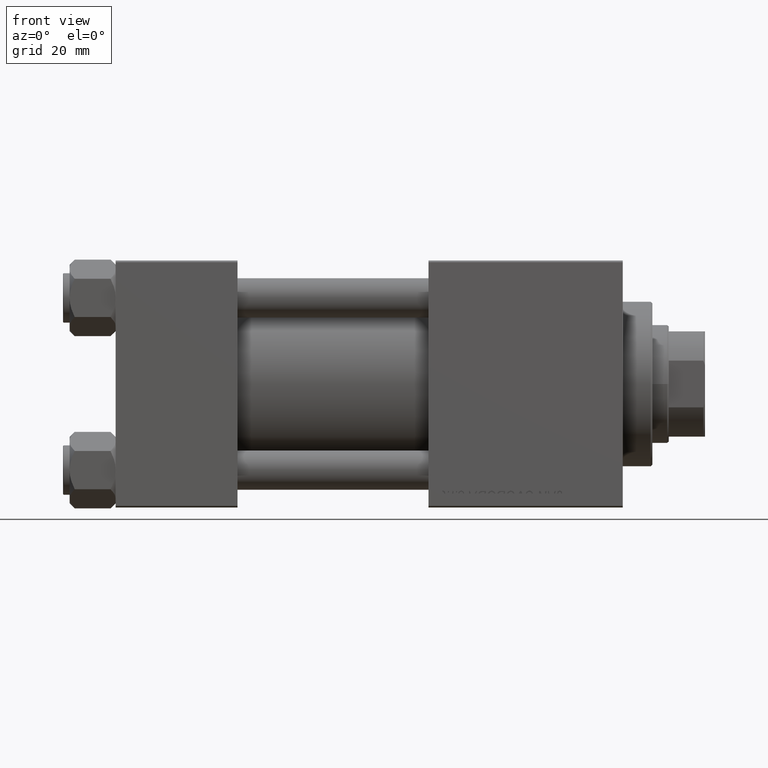
[diagram: clean part render]
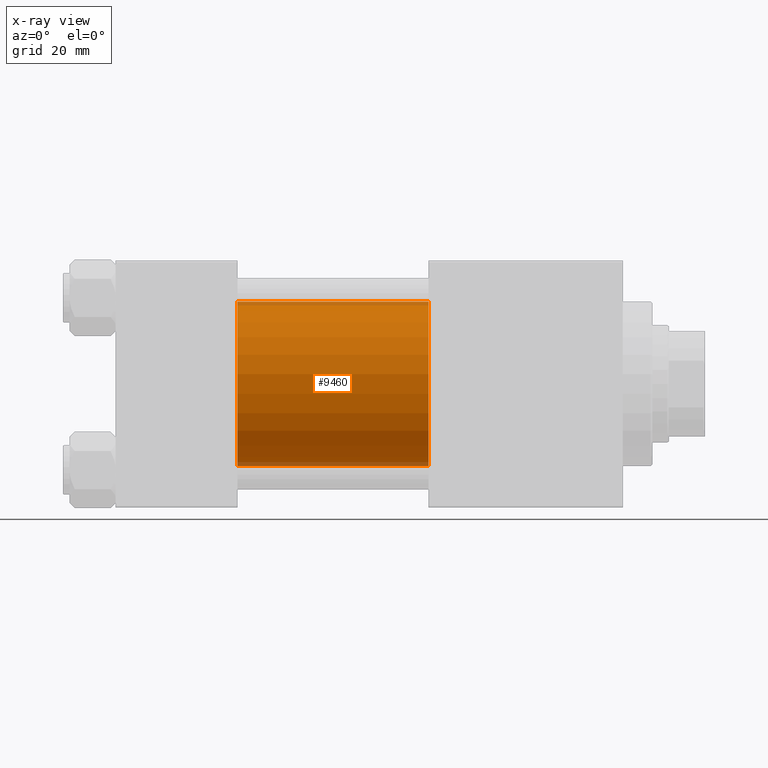
[diagram: x-ray — body ghosted, one internal face saturated and labeled with its STEP entity id]
A machine part, front view, then the same camera in x-ray: the body is ghosted and one INTERNAL B-rep face — a face not visible from any outside direction — is saturated and labeled: STEP entity #9460.
In plain terms, the highlighted cylindrical surface (partial cylindrical patch) has radius 25 mm, axis along (-1, -0, -0).
Its self-contained STEP definition (entity closure, byte-faithful):
#368 = CARTESIAN_POINT ( 'NONE',  ( 95.00000000000000000, -2.602085213965210642E-15, 0.000000000000000000 ) ) ;
#1011 = CARTESIAN_POINT ( 'NONE',  ( 95.00000000000000000, 4.595317839031718093E-16, -25.00000000000000000 ) ) ;
#2194 = CARTESIAN_POINT ( 'NONE',  ( 37.00000000000000000, -2.602085213965210642E-15, 0.000000000000000000 ) ) ;
#2926 = DIRECTION ( 'NONE',  ( -1.000000000000000000, -0.000000000000000000, -0.000000000000000000 ) ) ;
#3608 = ORIENTED_EDGE ( 'NONE', *, *, #33128, .F. ) ;
#4035 = CARTESIAN_POINT ( 'NONE',  ( 95.00000000000000000, -2.602085213965210642E-15, 0.000000000000000000 ) ) ;
#8241 = VECTOR ( 'NONE', #32001, 1000.000000000000000 ) ;
#8417 = AXIS2_PLACEMENT_3D ( 'NONE', #4035, #19295, #19046 ) ;
#9460 = ADVANCED_FACE ( 'NONE', ( #13069 ), #27545, .F. ) ;
#13011 = AXIS2_PLACEMENT_3D ( 'NONE', #2194, #17707, #44103 ) ;
#13069 = FACE_OUTER_BOUND ( 'NONE', #19921, .T. ) ;
#14378 = LINE ( 'NONE', #33387, #43610 ) ;
#17707 = DIRECTION ( 'NONE',  ( 1.000000000000000000, 0.000000000000000000, 0.000000000000000000 ) ) ;
#19046 = DIRECTION ( 'NONE',  ( 0.000000000000000000, 0.000000000000000000, -1.000000000000000000 ) ) ;
#19295 = DIRECTION ( 'NONE',  ( 1.000000000000000000, 0.000000000000000000, 0.000000000000000000 ) ) ;
#19921 = EDGE_LOOP ( 'NONE', ( #21498, #41806, #3608, #28079 ) ) ;
#20252 = VERTEX_POINT ( 'NONE', #34141 ) ;
#21498 = ORIENTED_EDGE ( 'NONE', *, *, #47590, .T. ) ;
#23655 = LINE ( 'NONE', #1011, #8241 ) ;
#25149 = CARTESIAN_POINT ( 'NONE',  ( 37.00000000000000000, -2.602085213965210642E-15, 25.00000000000000000 ) ) ;
#27545 = CYLINDRICAL_SURFACE ( 'NONE', #42362, 25.00000000000000000 ) ;
#28079 = ORIENTED_EDGE ( 'NONE', *, *, #28698, .F. ) ;
#28698 = EDGE_CURVE ( 'NONE', #46113, #44938, #14378, .T. ) ;
#32001 = DIRECTION ( 'NONE',  ( -1.000000000000000000, -0.000000000000000000, -0.000000000000000000 ) ) ;
#33128 = EDGE_CURVE ( 'NONE', #44938, #20252, #39715, .T. ) ;
#33387 = CARTESIAN_POINT ( 'NONE',  ( 95.00000000000000000, -2.602085213965210642E-15, 25.00000000000000000 ) ) ;
#34141 = CARTESIAN_POINT ( 'NONE',  ( 37.00000000000000000, 4.595317839031718093E-16, -25.00000000000000000 ) ) ;
#35637 = DIRECTION ( 'NONE',  ( 0.000000000000000000, 0.000000000000000000, 1.000000000000000000 ) ) ;
#39205 = CIRCLE ( 'NONE', #8417, 25.00000000000000000 ) ;
#39715 = CIRCLE ( 'NONE', #13011, 25.00000000000000000 ) ;
#41806 = ORIENTED_EDGE ( 'NONE', *, *, #41982, .T. ) ;
#41982 = EDGE_CURVE ( 'NONE', #49001, #20252, #23655, .T. ) ;
#42362 = AXIS2_PLACEMENT_3D ( 'NONE', #368, #47566, #35637 ) ;
#42593 = CARTESIAN_POINT ( 'NONE',  ( 95.00000000000000000, -2.602085213965210642E-15, 25.00000000000000000 ) ) ;
#43610 = VECTOR ( 'NONE', #2926, 1000.000000000000000 ) ;
#44103 = DIRECTION ( 'NONE',  ( 0.000000000000000000, 0.000000000000000000, -1.000000000000000000 ) ) ;
#44938 = VERTEX_POINT ( 'NONE', #25149 ) ;
#46113 = VERTEX_POINT ( 'NONE', #42593 ) ;
#47566 = DIRECTION ( 'NONE',  ( -1.000000000000000000, -0.000000000000000000, -0.000000000000000000 ) ) ;
#47590 = EDGE_CURVE ( 'NONE', #46113, #49001, #39205, .T. ) ;
#49001 = VERTEX_POINT ( 'NONE', #49287 ) ;
#49287 = CARTESIAN_POINT ( 'NONE',  ( 95.00000000000000000, 4.595317839031718093E-16, -25.00000000000000000 ) ) ;